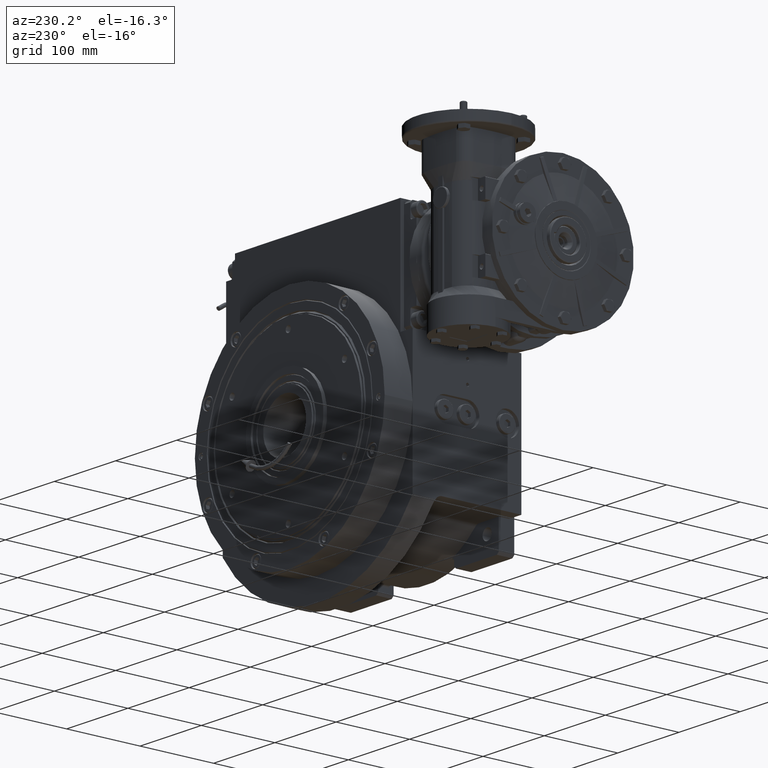
[diagram: clean part render]
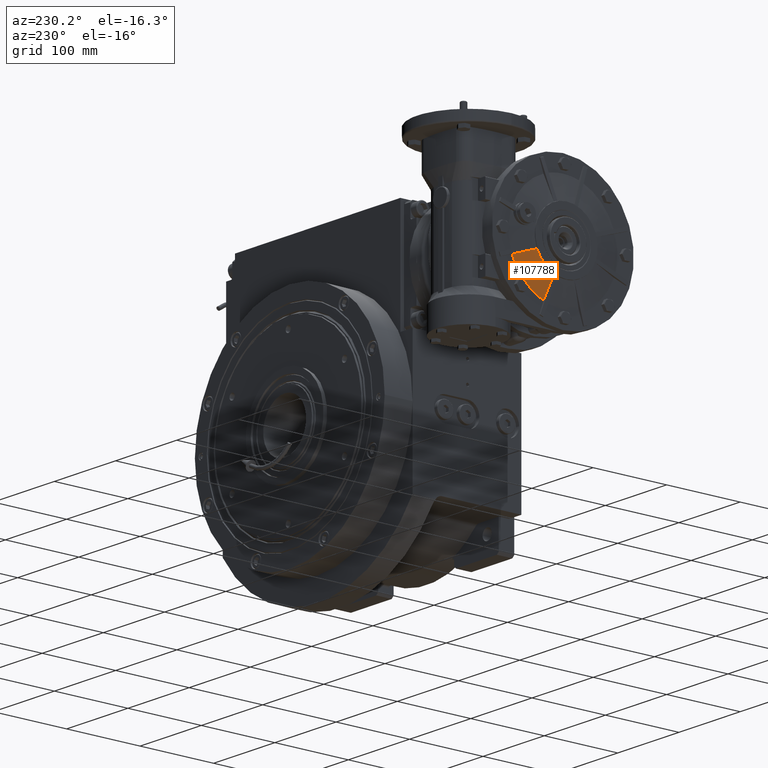
[diagram: same view with one face highlighted and labeled with its STEP entity id]
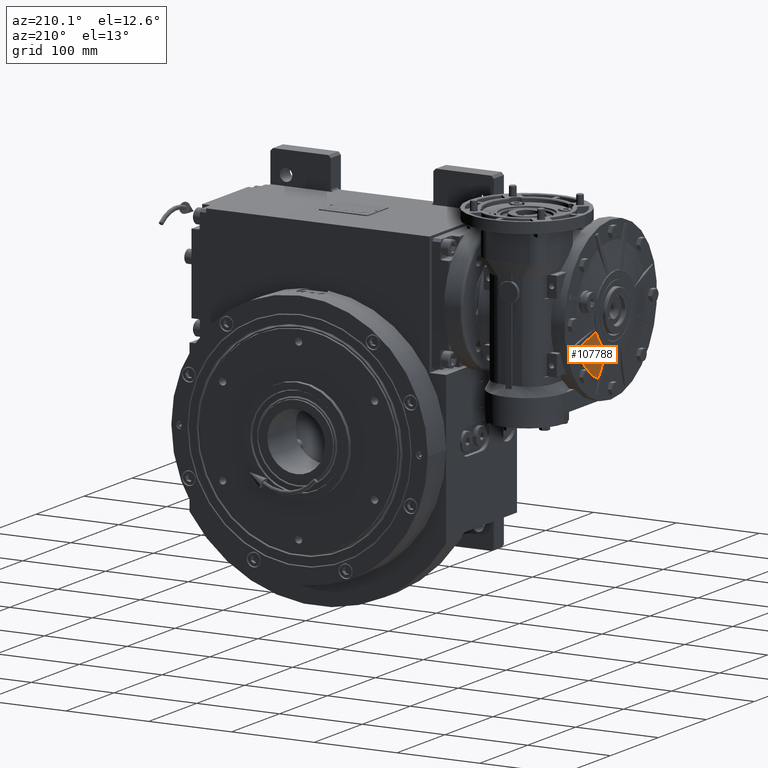
[diagram: same view with one face highlighted and labeled with its STEP entity id]
A machine part, auxiliary view. The second image highlights one B-rep face of the part: STEP entity #107788.
A second angle (auxiliary view) of the same face is appended — the face is thin or edge-on in the first view.
In plain terms, the highlighted conical surface has half-angle 81 deg.
Its self-contained STEP definition (entity closure, byte-faithful):
#33 = ORIENTED_EDGE ( 'NONE', *, *, #98951, .T. ) ;
#2153 = CARTESIAN_POINT ( 'NONE',  ( -52.00000000000001421, 59.20788289556308115, -44.57961315279074199 ) ) ;
#3602 = CARTESIAN_POINT ( 'NONE',  ( -54.60562620667691647, 53.61316867818989351, -21.10455867531236507 ) ) ;
#7928 = CARTESIAN_POINT ( 'NONE',  ( -54.49973467585832054, 21.32242029202633304, -54.24590750486942881 ) ) ;
#8962 = AXIS2_PLACEMENT_3D ( 'NONE', #105953, #18513, #9180 ) ;
#9180 = DIRECTION ( 'NONE',  ( 0.000000000000000000, 0.000000000000000000, 1.000000000000000000 ) ) ;
#9585 = CIRCLE ( 'NONE', #30064, 42.50000000000002132 ) ;
#9868 = EDGE_CURVE ( 'NONE', #105241, #28375, #74007, .T. ) ;
#14981 = B_SPLINE_CURVE_WITH_KNOTS ( 'NONE', 3,
 ( #115142, #22150, #101973, #102561, #22733, #86659, #60408, #60983, #42358, #96533, #67026, #69155, #16705, #52241, #57701, #7928, #114576, #43507, #93254 ),
 .UNSPECIFIED., .F., .F.,
 ( 4, 2, 2, 1, 1, 1, 1, 1, 1, 1, 2, 2, 4 ),
 ( 0.000000000000000000, 0.2500000000000320299, 0.3750000000000473510, 0.4375000000000550671, 0.4687500000000592304, 0.4843750000000616729, 0.4921875000000625611, 0.4960937500000630052, 0.4980468750000631717, 0.4990234375000629496, 0.4995117187500627276, 0.5000000000000625056, 1.000000000000000000 ),
 .UNSPECIFIED. ) ;
#15250 = CARTESIAN_POINT ( 'NONE',  ( -52.93313054076010360, 63.60581185868227294, -24.54529127299246838 ) ) ;
#16705 = CARTESIAN_POINT ( 'NONE',  ( -54.49565649809570544, 21.33081096497677009, -54.27027569121911199 ) ) ;
#17771 = ORIENTED_EDGE ( 'NONE', *, *, #85464, .T. ) ;
#18513 = DIRECTION ( 'NONE',  ( 1.000000000000000000, 0.000000000000000000, 0.000000000000000000 ) ) ;
#20207 = CARTESIAN_POINT ( 'NONE',  ( -52.00000000000000000, 55.94333798123939516, -48.61330192298987640 ) ) ;
#20793 = CARTESIAN_POINT ( 'NONE',  ( -52.00000000000000711, 42.48189883528654320, -60.73058257450278319 ) ) ;
#21108 = CARTESIAN_POINT ( 'NONE',  ( -56.26490114543786802, 43.69629560825257641, -17.69030693207740512 ) ) ;
#22150 = CARTESIAN_POINT ( 'NONE',  ( -52.46655254685573766, 25.50491447049617122, -66.39276315503154535 ) ) ;
#22733 = CARTESIAN_POINT ( 'NONE',  ( -53.73552497533462713, 22.89473774030359365, -58.81192416220206098 ) ) ;
#25434 = VERTEX_POINT ( 'NONE', #64987 ) ;
#28375 = VERTEX_POINT ( 'NONE', #65725 ) ;
#30064 = AXIS2_PLACEMENT_3D ( 'NONE', #110414, #66715, #92958 ) ;
#30425 = CARTESIAN_POINT ( 'NONE',  ( -54.50253939588913710, 54.22914854156582720, -21.31664972962926896 ) ) ;
#38257 = CARTESIAN_POINT ( 'NONE',  ( -51.99999999999998579, 35.88259702817386909, -64.84869771530081550 ) ) ;
#39173 = CARTESIAN_POINT ( 'NONE',  ( -54.52698312679724779, 54.08309008642387283, -21.26635841848670694 ) ) ;
#42358 = CARTESIAN_POINT ( 'NONE',  ( -54.42004775376452841, 21.48637348079280684, -54.72205407218215356 ) ) ;
#43507 = CARTESIAN_POINT ( 'NONE',  ( -56.29752467424683005, 17.62297020269724612, -43.50192354059925748 ) ) ;
#45420 = EDGE_CURVE ( 'NONE', #58599, #25434, #9585, .T. ) ;
#46773 = CARTESIAN_POINT ( 'NONE',  ( -56.99999999999999289, 39.30103540650440408, -16.17648342430100428 ) ) ;
#47017 = CARTESIAN_POINT ( 'NONE',  ( -51.99999999999999289, 63.55431797251398507, -38.12826120780124484 ) ) ;
#49628 = CARTESIAN_POINT ( 'NONE',  ( -54.50137386726191124, 54.23611289459271489, -21.31904773737365488 ) ) ;
#52241 = CARTESIAN_POINT ( 'NONE',  ( -54.49780792452584421, 21.32638449844241535, -54.25742035346259939 ) ) ;
#56653 = CARTESIAN_POINT ( 'NONE',  ( -55.08669716528208937, 50.73837570743778969, -20.11486199575887568 ) ) ;
#57227 = CARTESIAN_POINT ( 'NONE',  ( -54.50724383798331729, 54.20103818994351030, -21.30697062341175396 ) ) ;
#57701 = CARTESIAN_POINT ( 'NONE',  ( -54.49924201906187449, 21.32343391171471936, -54.24885125979457712 ) ) ;
#58599 = VERTEX_POINT ( 'NONE', #104863 ) ;
#60408 = CARTESIAN_POINT ( 'NONE',  ( -54.17408312893021360, 21.99244293333558886, -56.19169895036860396 ) ) ;
#60983 = CARTESIAN_POINT ( 'NONE',  ( -54.33873961202179714, 21.65366360069472762, -55.20787983150846401 ) ) ;
#61367 = ORIENTED_EDGE ( 'NONE', *, *, #45420, .T. ) ;
#63365 = CARTESIAN_POINT ( 'NONE',  ( -51.99999999983661780, 26.46440632237090185, -69.17933299577209993 ) ) ;
#63774 = ORIENTED_EDGE ( 'NONE', *, *, #9868, .F. ) ;
#64987 = CARTESIAN_POINT ( 'NONE',  ( -56.99999999999999289, 39.30103540650440408, -16.17648342430100428 ) ) ;
#65725 = CARTESIAN_POINT ( 'NONE',  ( -51.99999999983661780, 69.17956247502650058, -26.46448533841488882 ) ) ;
#65982 = CARTESIAN_POINT ( 'NONE',  ( -54.55325332237957525, 53.92611698685536226, -21.21230979828093410 ) ) ;
#66234 = CARTESIAN_POINT ( 'NONE',  ( -51.99999999999999289, 64.84890772804260450, -35.88212997573564422 ) ) ;
#66715 = DIRECTION ( 'NONE',  ( 1.000000000000000000, 0.000000000000000000, 0.000000000000000000 ) ) ;
#67026 = CARTESIAN_POINT ( 'NONE',  ( -54.48058256640771191, 21.36182496529415076, -54.36034622140046224 ) ) ;
#68277 = CARTESIAN_POINT ( 'NONE',  ( -53.76668290612102652, 58.62609132098628351, -22.83063270253810018 ) ) ;
#69155 = CARTESIAN_POINT ( 'NONE',  ( -54.49063451070963282, 21.34114349191525051, -54.30028336012671986 ) ) ;
#73411 = EDGE_LOOP ( 'NONE', ( #61367, #17771, #63774, #33 ) ) ;
#73787 = CARTESIAN_POINT ( 'NONE',  ( -52.00000000000000000, 60.73053620648443740, -42.48189993609626214 ) ) ;
#74007 = B_SPLINE_CURVE_WITH_KNOTS ( 'NONE', 3,
 ( #63365, #81408, #87901, #38257, #92450, #20793, #74368, #91882, #110497, #100040, #20207, #2153, #73787, #47017, #66234, #90746, #109935, #75508 ),
 .UNSPECIFIED., .F., .F.,
 ( 4, 2, 2, 2, 2, 2, 2, 2, 4 ),
 ( 0.000000000000000000, 0.1250000000000000833, 0.2500000000000001665, 0.3750000000000002220, 0.5000000000000003331, 0.6250000000000004441, 0.7500000000000004441, 0.8750000000000002220, 1.000000000000000000 ),
 .UNSPECIFIED. ) ;
#74114 = CARTESIAN_POINT ( 'NONE',  ( -55.42361889005979947, 48.72480731485508443, -19.42168843957287194 ) ) ;
#74368 = CARTESIAN_POINT ( 'NONE',  ( -52.00000000000000000, 44.57962038005052818, -59.20782788109480776 ) ) ;
#75508 = CARTESIAN_POINT ( 'NONE',  ( -51.99999999983661780, 69.17956247502650058, -26.46448533841488882 ) ) ;
#81408 = CARTESIAN_POINT ( 'NONE',  ( -52.00000000000000000, 28.88708846209726744, -68.25278314426927295 ) ) ;
#82307 = CARTESIAN_POINT ( 'NONE',  ( -56.64878648053677779, 41.40133509299494818, -16.89967709911501714 ) ) ;
#83467 = CARTESIAN_POINT ( 'NONE',  ( -54.70970194780253593, 52.99126394537464080, -20.89044001542693252 ) ) ;
#85464 = EDGE_CURVE ( 'NONE', #25434, #28375, #107028, .T. ) ;
#86659 = CARTESIAN_POINT ( 'NONE',  ( -54.02945151552683711, 22.29001646458928221, -57.05583388715933779 ) ) ;
#87901 = CARTESIAN_POINT ( 'NONE',  ( -51.99999999999998579, 31.25684663452692291, -67.20059488798398206 ) ) ;
#90746 = CARTESIAN_POINT ( 'NONE',  ( -52.00000000000000711, 67.20040674610980602, -31.25729792834145471 ) ) ;
#91882 = CARTESIAN_POINT ( 'NONE',  ( -51.99999999999999289, 48.61331045952866958, -55.94338031299160008 ) ) ;
#92211 = CARTESIAN_POINT ( 'NONE',  ( -54.91517332017740216, 51.76342446877435322, -20.46773033451226809 ) ) ;
#92450 = CARTESIAN_POINT ( 'NONE',  ( -52.00000000000000000, 38.12827785216870069, -63.55426045406904478 ) ) ;
#92958 = DIRECTION ( 'NONE',  ( 0.000000000000000000, 0.3806231393953152797, -0.9247302448589287405 ) ) ;
#93254 = CARTESIAN_POINT ( 'NONE',  ( -56.99999999999999289, 16.17648342430094743, -39.30103540650445382 ) ) ;
#95651 = CARTESIAN_POINT ( 'NONE',  ( -51.99999999983661780, 69.17956247502650058, -26.46448533841488882 ) ) ;
#96533 = CARTESIAN_POINT ( 'NONE',  ( -54.46044679968512980, 21.40325358530640543, -54.48066203954733311 ) ) ;
#98324 = FACE_OUTER_BOUND ( 'NONE', #73411, .T. ) ;
#98951 = EDGE_CURVE ( 'NONE', #105241, #58599, #14981, .T. ) ;
#100040 = CARTESIAN_POINT ( 'NONE',  ( -52.00000000000000711, 54.20920196027949345, -50.53986626942050009 ) ) ;
#101520 = CARTESIAN_POINT ( 'NONE',  ( -54.50442132228651815, 54.21790351001295249, -21.31277777791777339 ) ) ;
#101973 = CARTESIAN_POINT ( 'NONE',  ( -52.90819660989069462, 24.59662923943088941, -63.75450970340588697 ) ) ;
#102561 = CARTESIAN_POINT ( 'NONE',  ( -53.53335619735916140, 23.31064898887824555, -60.01974557506068919 ) ) ;
#104863 = CARTESIAN_POINT ( 'NONE',  ( -56.99999999999999289, 16.17648342430094743, -39.30103540650445382 ) ) ;
#105241 = VERTEX_POINT ( 'NONE', #113077 ) ;
#105953 = CARTESIAN_POINT ( 'NONE',  ( -63.57295427412368127, 8.572527594031470232E-16, 0.000000000000000000 ) ) ;
#107028 = B_SPLINE_CURVE_WITH_KNOTS ( 'NONE', 3,
 ( #46773, #82307, #21108, #109119, #74114, #56653, #92211, #83467, #3602, #65982, #39173, #110257, #57227, #101520, #30425, #49628, #68277, #15250, #95651 ),
 .UNSPECIFIED., .F., .F.,
 ( 4, 2, 2, 1, 1, 1, 1, 1, 1, 1, 2, 2, 4 ),
 ( 0.000000000000000000, 0.2500000000000589528, 0.3750000000000884293, 0.4375000000001031397, 0.4687500000001105782, 0.4843750000001142975, 0.4921875000001160738, 0.4960937500001169065, 0.4980468750001171285, 0.4990234375001171840, 0.4995117187501175171, 0.5000000000001177947, 1.000000000000000000 ),
 .UNSPECIFIED. ) ;
#107788 = ADVANCED_FACE ( 'NONE', ( #98324 ), #111299, .T. ) ;
#109119 = CARTESIAN_POINT ( 'NONE',  ( -55.64006541933599692, 47.43113597612294541, -18.97631789745905095 ) ) ;
#109935 = CARTESIAN_POINT ( 'NONE',  ( -51.99999999999999289, 68.25204182543467368, -28.88888839046999379 ) ) ;
#110257 = CARTESIAN_POINT ( 'NONE',  ( -54.51382709064769472, 54.16170136734927354, -21.29342600743428449 ) ) ;
#110414 = CARTESIAN_POINT ( 'NONE',  ( -56.99999999999999289, 8.526512829121199706E-14, -8.326672684688674053E-14 ) ) ;
#110497 = CARTESIAN_POINT ( 'NONE',  ( -51.99999999999999289, 50.53984662191653143, -54.20916815334447847 ) ) ;
#111299 = CONICAL_SURFACE ( 'NONE', #8962, 1.000000000000000000, 1.413716694099999671 ) ;
#113077 = CARTESIAN_POINT ( 'NONE',  ( -51.99999999983661780, 26.46440632237090185, -69.17933299577209993 ) ) ;
#114576 = CARTESIAN_POINT ( 'NONE',  ( -55.46441661723747529, 19.33763018431955771, -48.48167497786285196 ) ) ;
#115142 = CARTESIAN_POINT ( 'NONE',  ( -51.99999999983661780, 26.46440632237090185, -69.17933299577209993 ) ) ;